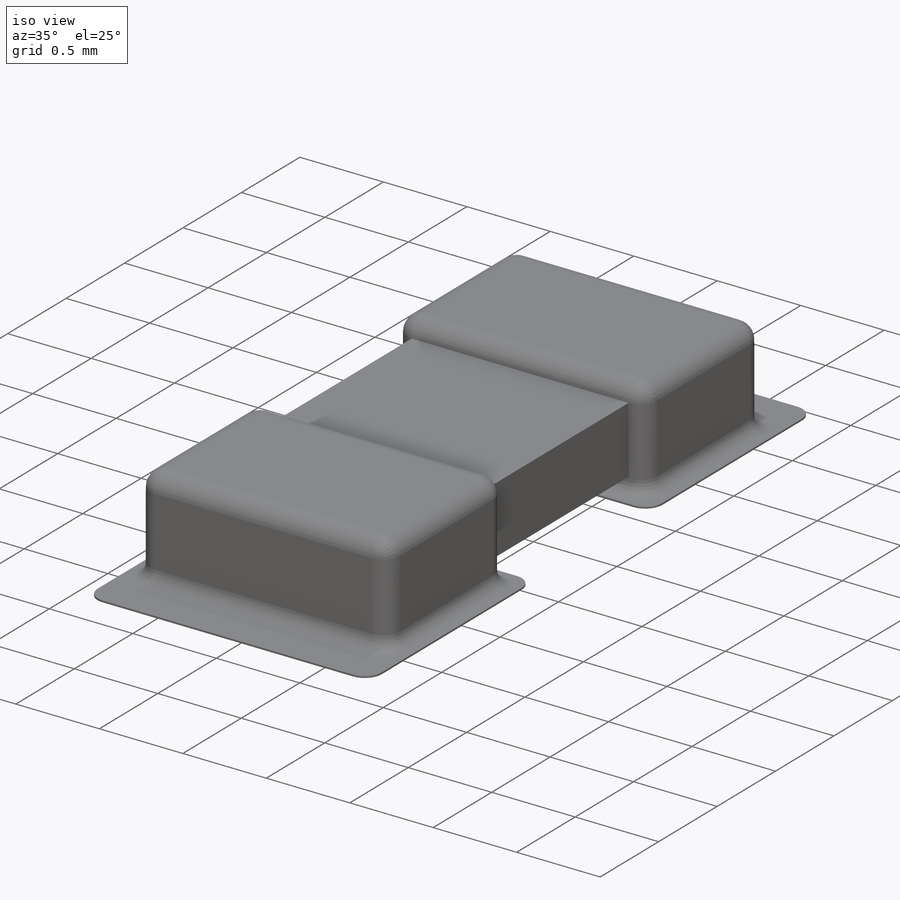
[diagram: iso view]
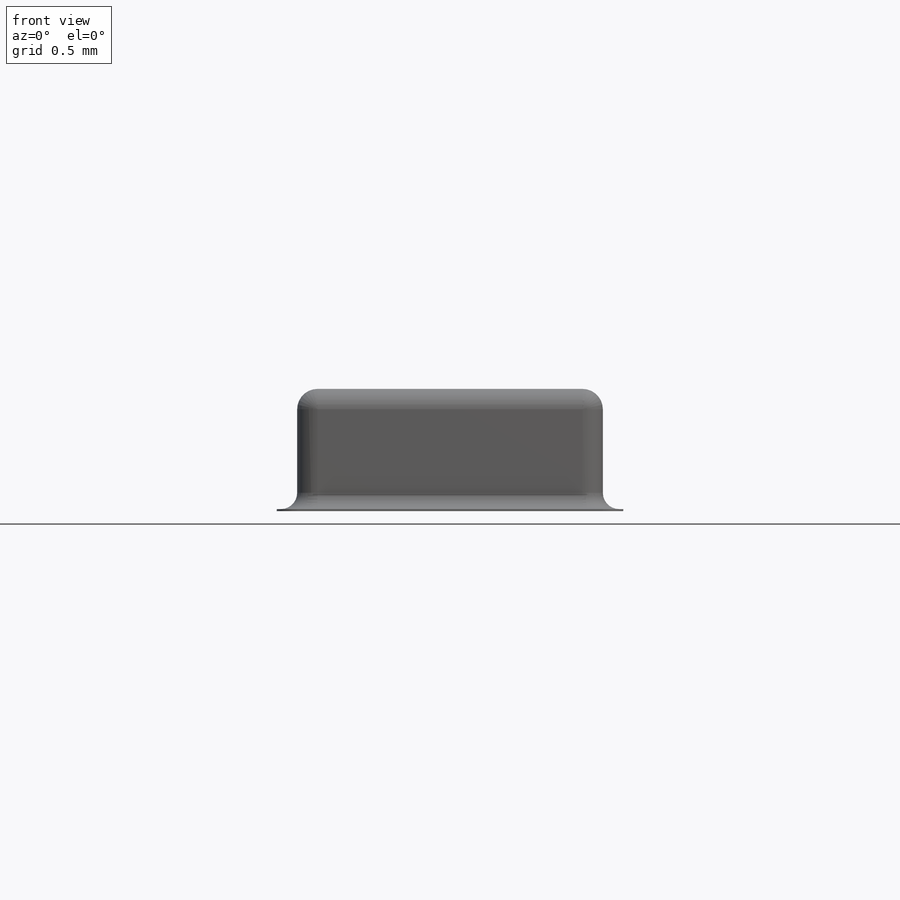
[diagram: front view]
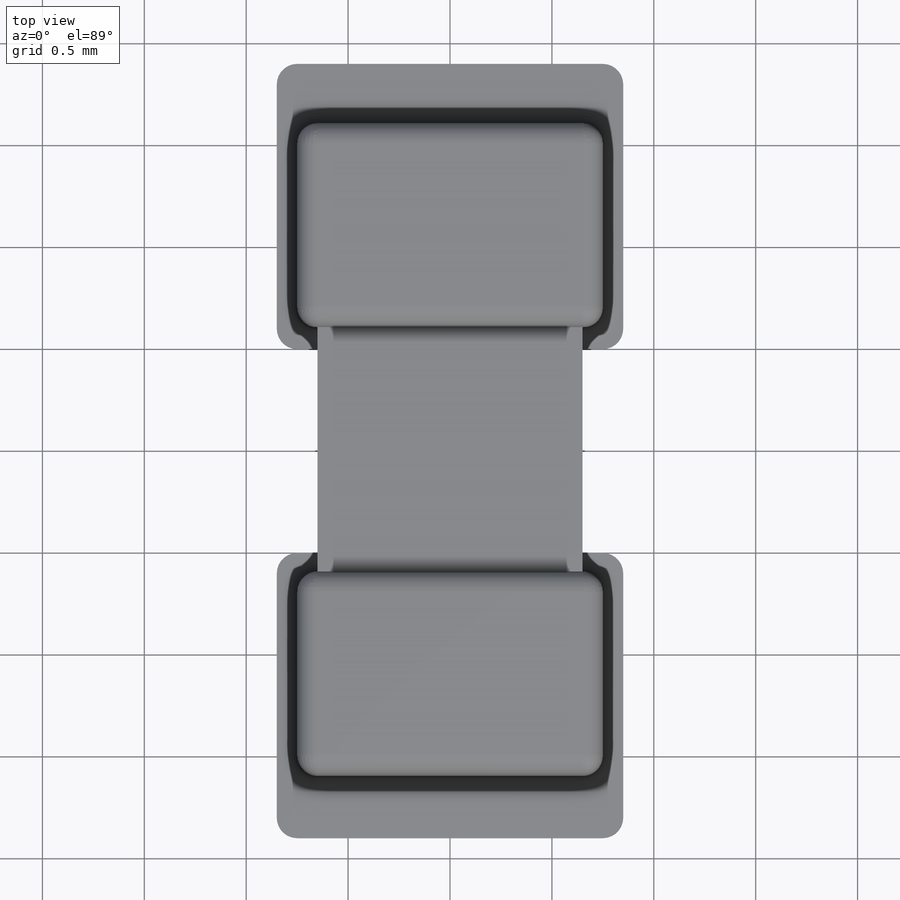
[diagram: top view]
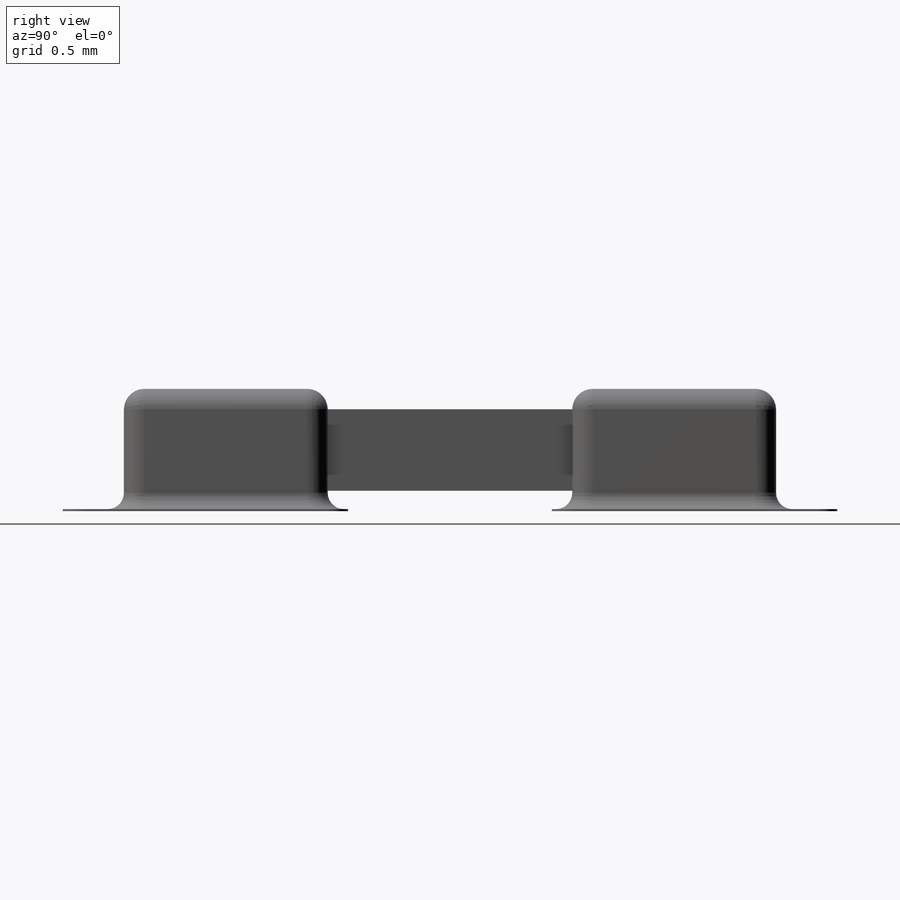
[diagram: right view]
SOLIDWORKS PART (.sldprt)
format: sldprt  version: not decoded by parser v0  size: 441,344 bytes
history: native  units: mm
features: sketch x4, extrude x4, plane x2, fillet x2, material x1, mirror x1 (+11 scaffold rows collapsed)
feature tree (25):
  scaffold x11  (default folders/planes/origin — collapsed)
  material  "Material <not specified>"
  plane  "Plane1"
  sketch  "Sketch1"  dims[D1=0.1mm D2=0.4mm D3=1.3mm D4=0.65mm]
  extrude  "Boss-Extrude1"  Depth=0.6mm
  sketch  "Sketch2"  dims[c1.D2=0.1mm c1.D1=1.5mm c2.D2=0.75mm c2.D3=0.6mm]
  extrude  "Boss-Extrude2"  Depth=1mm
  fillet  "Fillet1"  Radius=0.1mm
  mirror  "Mirror3"
  plane  "Plane2"
  sketch  "Sketch3"  dims[D7=0.1mm D1=0.5mm D2=1.0mm D3=1.4mm D4=0.85mm D5=1.7mm D6=3.8mm]
  extrude  "Boss-Extrude3"  Depth=0.01mm
  fillet  "Fillet2"  Radius=0.08mm
  sketch  "Sketch4"  dims[D1=0.05mm D2=1.2mm D3=1.4mm D4=0.7mm D5=0.4mm D6=0.63mm]
  extrude  "Boss-Extrude4"  Depth=0.005mm
decode coverage: 10 of 11 modeling features carry decoded parameters
note: suppression state not decoded; provenance and decode notes live in map.json
